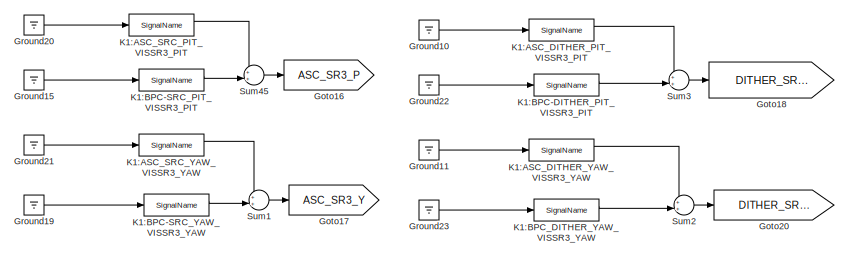
[diagram: root canvas - part 1/4, top right region]
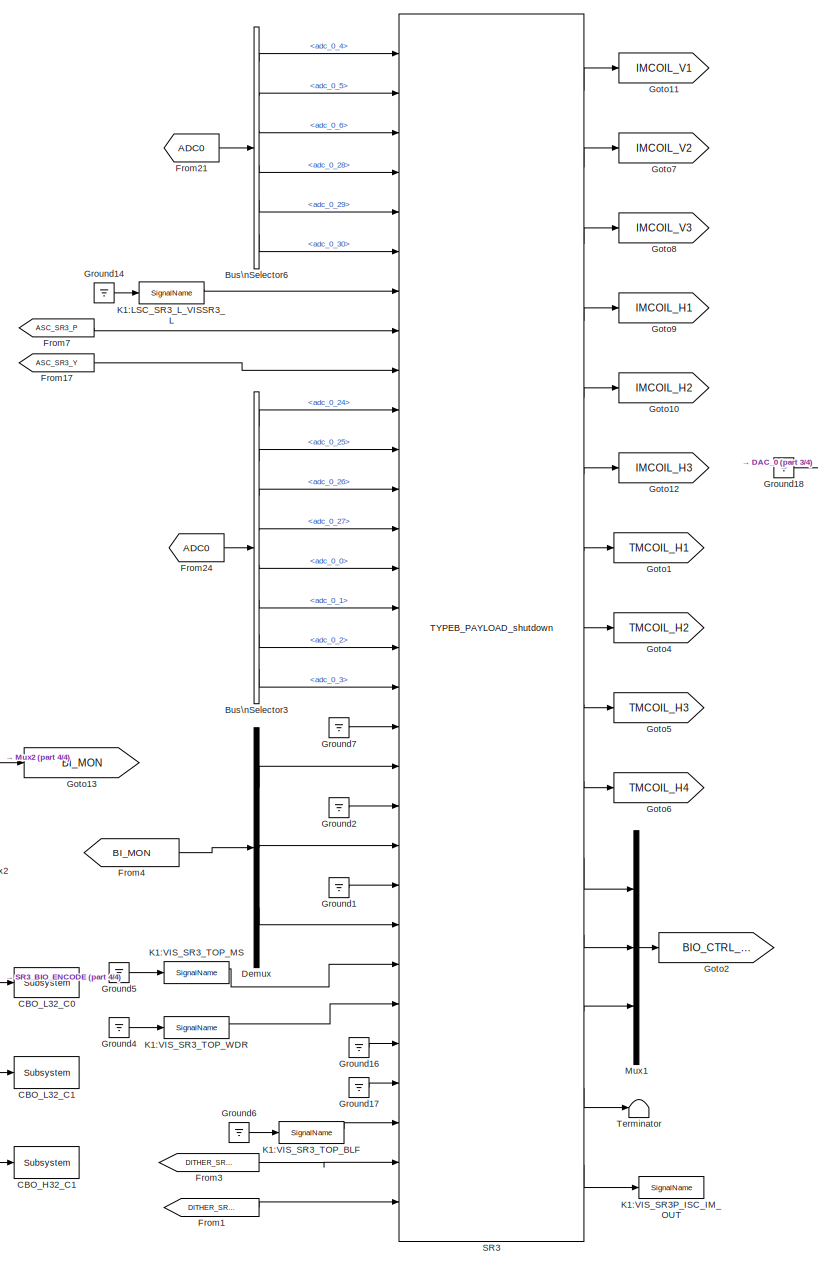
[diagram: root canvas - part 2/4, center side, full height]
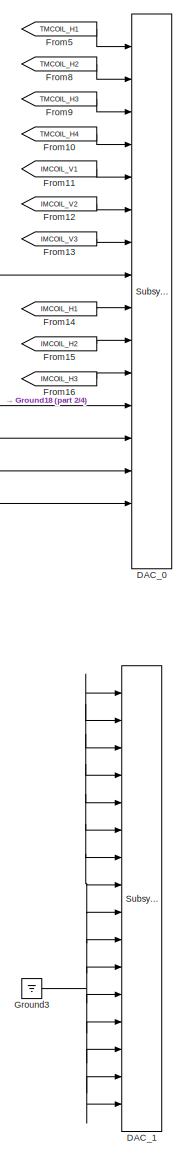
[diagram: root canvas - part 3/4, right side, full height]
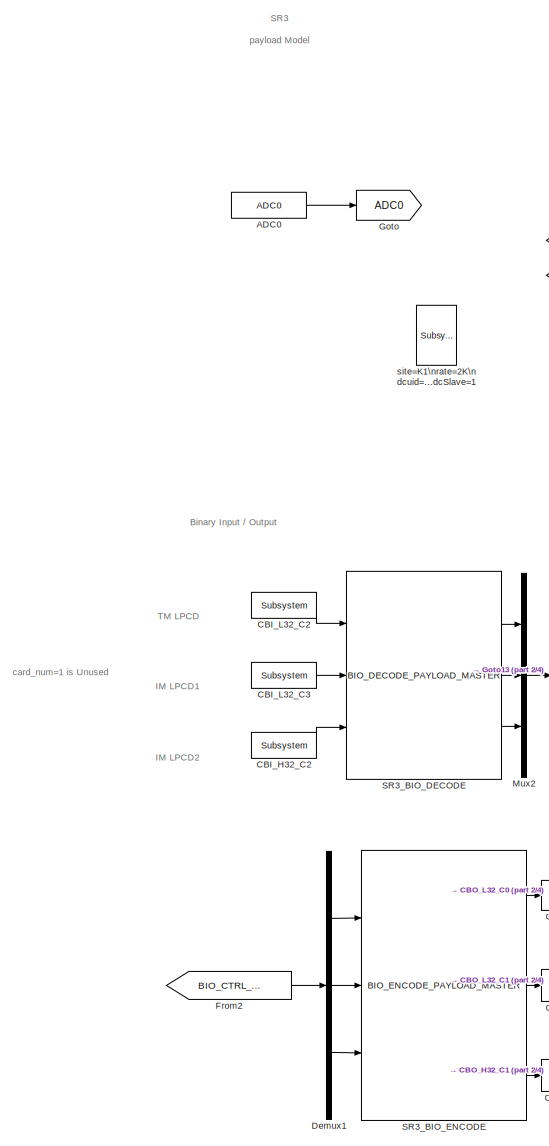
[diagram: root canvas - part 4/4, left side, full height]
MODEL k1vissr3p
KIND model
BLOCK [Reference] ADC0  REF=cdsAdcx0/ADC0
  AttributesFormatString = %<Description>\\n%<Tag>
  Description = type-GSC_16AI64SSA\ncard_num=0
  Ports = [0, 1]
  SID = 271
  SourceBlock = cdsAdcx0/ADC0
  SourceType = SubSystem
  Tag = cdsAdc
BLOCK [BusSelector] Bus\nSelector3
  AttributesFormatString = %<Description>
  Description = ADC Selector
  OutputSignals = adc_0_24,adc_0_25,adc_0_26,adc_0_27,adc_0_0,adc_0_1,adc_0_2,adc_0_3
  Ports = [1, 8]
  SID = 275
BLOCK [BusSelector] Bus\nSelector6
  AttributesFormatString = %<Description>
  Description = ADC Selector
  OutputSignals = adc_0_4,adc_0_5,adc_0_6,adc_0_28,adc_0_29,adc_0_30
  Ports = [1, 6]
  SID = 273
BLOCK [Reference] CBI_H32_C2  REF=cdsCDI64/Subsystem
  AttributesFormatString = %<Tag>\\n%<Description>
  Description = card_num=3
  Ports = [0, 1]
  SID = 2354
  SourceBlock = cdsCDI64/Subsystem
  SourceType = SubSystem
  Tag = cdsCDI64
BLOCK [Reference] CBI_L32_C2  REF=cdsCDI64/Subsystem
  AttributesFormatString = %<Tag>\\n%<Description>
  Description = card_num=0
  Ports = [0, 1]
  SID = 2355
  SourceBlock = cdsCDI64/Subsystem
  SourceType = SubSystem
  Tag = cdsCDI64
BLOCK [Reference] CBI_L32_C3  REF=cdsCDI64/Subsystem
  AttributesFormatString = %<Tag>\\n%<Description>
  Description = card_num=2
  Ports = [0, 1]
  SID = 2356
  SourceBlock = cdsCDI64/Subsystem
  SourceType = SubSystem
  Tag = cdsCDI64
BLOCK [Reference] CBO_H32_C1  REF=cdsCDO64/Subsystem
  AttributesFormatString = %<Tag>\\n%<Description>
  Description = card_num=3
  Ports = [1]
  SID = 2363
  SourceBlock = cdsCDO64/Subsystem
  SourceType = SubSystem
  Tag = cdsCDO64
BLOCK [Reference] CBO_L32_C0  REF=cdsCDO64/Subsystem
  AttributesFormatString = %<Tag>\\n%<Description>
  Description = card_num=0
  Ports = [1]
  SID = 2364
  SourceBlock = cdsCDO64/Subsystem
  SourceType = SubSystem
  Tag = cdsCDO64
BLOCK [Reference] CBO_L32_C1  REF=cdsCDO64/Subsystem
  AttributesFormatString = %<Tag>\\n%<Description>
  Description = card_num=2
  Ports = [1]
  SID = 2365
  SourceBlock = cdsCDO64/Subsystem
  SourceType = SubSystem
  Tag = cdsCDO64
BLOCK [Reference] DAC_0  REF=dac/Subsystem  (lib defined in slx_40ef132df75b, slx_b7657ccccc5b, +4 more)
  AttributesFormatString = %<Description>
  Description = type=GSC_16AO16,\ncard_num=0
  Ports = [16]
  SID = 350
  SourceBlock = dac/Subsystem
  SourceType = SubSystem
BLOCK [Reference] DAC_1  REF=dac/Subsystem  (lib defined in slx_40ef132df75b, slx_b7657ccccc5b, +4 more)
  AttributesFormatString = %<Description>
  Description = type=GSC_16AO16,\ncard_num=1
  Ports = [16]
  SID = 536
  SourceBlock = dac/Subsystem
  SourceType = SubSystem
BLOCK [Demux] Demux
  DisplayOption = bar
  Outputs = 3
  Ports = [1, 3]
  SID = 2148
BLOCK [Demux] Demux1
  DisplayOption = bar
  Outputs = 3
  Ports = [1, 3]
  SID = 2366
BLOCK [From] From1
  GotoTag = DITHER_SR3_Y
  SID = 2439
BLOCK [From] From10
  GotoTag = TMCOIL_H4
  SID = 351
BLOCK [From] From11
  GotoTag = IMCOIL_V1
  SID = 352
BLOCK [From] From12
  GotoTag = IMCOIL_V2
  SID = 353
BLOCK [From] From13
  GotoTag = IMCOIL_V3
  SID = 354
BLOCK [From] From14
  GotoTag = IMCOIL_H1
  SID = 355
BLOCK [From] From15
  GotoTag = IMCOIL_H2
  SID = 356
BLOCK [From] From16
  GotoTag = IMCOIL_H3
  SID = 357
BLOCK [From] From17
  GotoTag = ASC_SR3_Y
  SID = 2435
BLOCK [From] From2
  GotoTag = BIO_CTRL_OUT
  SID = 2367
BLOCK [From] From21
  GotoTag = ADC0
  SID = 1851
BLOCK [From] From24
  GotoTag = ADC0
  SID = 1853
BLOCK [From] From3
  GotoTag = DITHER_SR3_P
  SID = 2440
BLOCK [From] From4
  GotoTag = BI_MON
  SID = 2149
BLOCK [From] From5
  GotoTag = TMCOIL_H1
  SID = 359
BLOCK [From] From7
  GotoTag = ASC_SR3_P
  SID = 2436
BLOCK [From] From8
  GotoTag = TMCOIL_H2
  SID = 360
BLOCK [From] From9
  GotoTag = TMCOIL_H3
  SID = 361
BLOCK [Goto] Goto
  GotoTag = ADC0
  SID = 272
BLOCK [Goto] Goto1
  GotoTag = TMCOIL_H1
  SID = 364
BLOCK [Goto] Goto10
  GotoTag = IMCOIL_H2
  SID = 368
BLOCK [Goto] Goto11
  GotoTag = IMCOIL_V1
  SID = 369
BLOCK [Goto] Goto12
  GotoTag = IMCOIL_H3
  SID = 370
BLOCK [Goto] Goto13
  GotoTag = BI_MON
  SID = 2357
BLOCK [Goto] Goto16
  GotoTag = ASC_SR3_P
  SID = 2411
BLOCK [Goto] Goto17
  GotoTag = ASC_SR3_Y
  SID = 2412
BLOCK [Goto] Goto18
  GotoTag = DITHER_SR3_P
  SID = 2413
BLOCK [Goto] Goto2
  GotoTag = BIO_CTRL_OUT
  SID = 2146
BLOCK [Goto] Goto20
  GotoTag = DITHER_SR3_Y
  SID = 2414
BLOCK [Goto] Goto4
  GotoTag = TMCOIL_H2
  SID = 365
BLOCK [Goto] Goto5
  GotoTag = TMCOIL_H3
  SID = 366
BLOCK [Goto] Goto6
  GotoTag = TMCOIL_H4
  SID = 367
BLOCK [Goto] Goto7
  GotoTag = IMCOIL_V2
  SID = 371
BLOCK [Goto] Goto8
  GotoTag = IMCOIL_V3
  SID = 372
BLOCK [Goto] Goto9
  GotoTag = IMCOIL_H1
  SID = 373
BLOCK [Ground] Ground1
  SID = 2152
BLOCK [Ground] Ground10
  SID = 2415
BLOCK [Ground] Ground11
  SID = 2416
BLOCK [Ground] Ground14
  SID = 2202
BLOCK [Ground] Ground15
  SID = 2417
BLOCK [Ground] Ground16
  SID = 2351
BLOCK [Ground] Ground17
  SID = 2352
BLOCK [Ground] Ground18
  SID = 362
BLOCK [Ground] Ground19
  SID = 2418
BLOCK [Ground] Ground2
  SID = 2153
BLOCK [Ground] Ground20
  SID = 2421
BLOCK [Ground] Ground21
  SID = 2422
BLOCK [Ground] Ground22
  SID = 2419
BLOCK [Ground] Ground23
  SID = 2420
BLOCK [Ground] Ground3
  SID = 537
BLOCK [Ground] Ground4
  SID = 2160
BLOCK [Ground] Ground5
  SID = 2162
BLOCK [Ground] Ground6
  SID = 2370
BLOCK [Ground] Ground7
  SID = 2151
BLOCK [Reference] K1:ASC_DITHER_PIT_VISSR3_PIT  REF=cdsIPCx/SignalName
  AttributesFormatString = %<Tag>
  Description = Inter-Process Communication via PCI Express network.
  Ports = [1, 2]
  SID = 2376
  SourceBlock = cdsIPCx/SignalName
  SourceType = SubSystem
  Tag = cdsIPCx_PCIE
BLOCK [Reference] K1:ASC_DITHER_YAW_VISSR3_YAW  REF=cdsIPCx/SignalName
  AttributesFormatString = %<Tag>
  Description = Inter-Process Communication via PCI Express network.
  Ports = [1, 2]
  SID = 2377
  SourceBlock = cdsIPCx/SignalName
  SourceType = SubSystem
  Tag = cdsIPCx_PCIE
BLOCK [Reference] K1:ASC_SRC_PIT_VISSR3_PIT  REF=cdsIPCx/SignalName
  AttributesFormatString = %<Tag>
  Description = Inter-Process Communication via PCI Express network.
  Ports = [1, 2]
  SID = 2378
  SourceBlock = cdsIPCx/SignalName
  SourceType = SubSystem
  Tag = cdsIPCx_PCIE
BLOCK [Reference] K1:ASC_SRC_YAW_VISSR3_YAW  REF=cdsIPCx/SignalName
  AttributesFormatString = %<Tag>
  Description = Inter-Process Communication via PCI Express network.
  Ports = [1, 2]
  SID = 2379
  SourceBlock = cdsIPCx/SignalName
  SourceType = SubSystem
  Tag = cdsIPCx_PCIE
BLOCK [Reference] K1:BPC-DITHER_PIT_VISSR3_PIT  REF=cdsIPCx/SignalName
  AttributesFormatString = %<Tag>
  Description = Inter-Process Communication via PCI Express network.
  Ports = [1, 2]
  SID = 2427
  SourceBlock = cdsIPCx/SignalName
  SourceType = SubSystem
  Tag = cdsIPCx_PCIE
BLOCK [Reference] K1:BPC-SRC_PIT_VISSR3_PIT  REF=cdsIPCx/SignalName
  AttributesFormatString = %<Tag>
  Description = Inter-Process Communication via PCI Express network.
  Ports = [1, 2]
  SID = 2428
  SourceBlock = cdsIPCx/SignalName
  SourceType = SubSystem
  Tag = cdsIPCx_PCIE
BLOCK [Reference] K1:BPC-SRC_YAW_VISSR3_YAW  REF=cdsIPCx/SignalName
  AttributesFormatString = %<Tag>
  Description = Inter-Process Communication via PCI Express network.
  Ports = [1, 2]
  SID = 2429
  SourceBlock = cdsIPCx/SignalName
  SourceType = SubSystem
  Tag = cdsIPCx_PCIE
BLOCK [Reference] K1:BPC_DITHER_YAW_VISSR3_YAW  REF=cdsIPCx/SignalName
  AttributesFormatString = %<Tag>
  Description = Inter-Process Communication via PCI Express network.
  Ports = [1, 2]
  SID = 2430
  SourceBlock = cdsIPCx/SignalName
  SourceType = SubSystem
  Tag = cdsIPCx_PCIE
BLOCK [Reference] K1:LSC_SR3_L_VISSR3_L  REF=cdsIPCx/SignalName
  AttributesFormatString = %<Tag>
  Description = Inter-Process Communication via PCI Express network.
  Ports = [1, 2]
  SID = 2386
  SourceBlock = cdsIPCx/SignalName
  SourceType = SubSystem
  Tag = cdsIPCx_PCIE
BLOCK [Reference] K1:VIS_SR3P_ISC_IM_OUT  REF=cdsIPCx/SignalName
  AttributesFormatString = %<Tag>
  Description = Inter-Process Communication via Shared memory.
  Ports = [1, 2]
  SID = 2441
  SourceBlock = cdsIPCx/SignalName
  SourceType = SubSystem
  Tag = cdsIPCx_SHMEM
BLOCK [Reference] K1:VIS_SR3_TOP_BLF  REF=cdsIPCx/SignalName
  AttributesFormatString = %<Tag>
  Description = Inter-Process Communication via Shared memory.
  Ports = [1, 2]
  SID = 2371
  SourceBlock = cdsIPCx/SignalName
  SourceType = SubSystem
  Tag = cdsIPCx_SHMEM
BLOCK [Reference] K1:VIS_SR3_TOP_MS  REF=cdsIPCx/SignalName
  AttributesFormatString = %<Tag>
  Description = Inter-Process Communication via Shared memory.
  Ports = [1, 2]
  SID = 2163
  SourceBlock = cdsIPCx/SignalName
  SourceType = SubSystem
  Tag = cdsIPCx_SHMEM
BLOCK [Reference] K1:VIS_SR3_TOP_WDR  REF=cdsIPCx/SignalName
  AttributesFormatString = %<Tag>
  Description = Inter-Process Communication via Shared memory.
  Ports = [1, 2]
  SID = 2161
  SourceBlock = cdsIPCx/SignalName
  SourceType = SubSystem
  Tag = cdsIPCx_SHMEM
BLOCK [Mux] Mux1
  DisplayOption = bar
  Inputs = 3
  Ports = [3, 1]
  SID = 2147
BLOCK [Mux] Mux2
  DisplayOption = bar
  Inputs = 3
  Ports = [3, 1]
  SID = 2358
BLOCK [Reference] SR3  REF=TYPEB_MASTER/TYPEB_PAYLOAD_shutdown
  Ports = [30, 15]
  SID = 2369
  SourceBlock = TYPEB_MASTER/TYPEB_PAYLOAD_shutdown
  SourceType = SubSystem
BLOCK [Reference] SR3_BIO_DECODE  REF=TYPEB_MASTER/BIO_DECODE_PAYLOAD_MASTER
  Ports = [3, 3]
  SID = 2359
  SourceBlock = TYPEB_MASTER/BIO_DECODE_PAYLOAD_MASTER
  SourceType = SubSystem
BLOCK [Reference] SR3_BIO_ENCODE  REF=TYPEB_MASTER/BIO_ENCODE_PAYLOAD_MASTER
  Ports = [3, 3]
  SID = 2368
  SourceBlock = TYPEB_MASTER/BIO_ENCODE_PAYLOAD_MASTER
  SourceType = SubSystem
BLOCK [Sum] Sum1
  IconShape = round
  InputSameDT = off
  Inputs = ++|
  OutDataTypeStr = Inherit: Inherit via internal rule
  Ports = [2, 1]
  SID = 2431
  SaturateOnIntegerOverflow = off
BLOCK [Sum] Sum2
  IconShape = round
  InputSameDT = off
  Inputs = ++|
  OutDataTypeStr = Inherit: Inherit via internal rule
  Ports = [2, 1]
  SID = 2432
  SaturateOnIntegerOverflow = off
BLOCK [Sum] Sum3
  IconShape = round
  InputSameDT = off
  Inputs = ++|
  OutDataTypeStr = Inherit: Inherit via internal rule
  Ports = [2, 1]
  SID = 2433
  SaturateOnIntegerOverflow = off
BLOCK [Sum] Sum45
  IconShape = round
  InputSameDT = off
  Inputs = ++|
  OutDataTypeStr = Inherit: Inherit via internal rule
  Ports = [2, 1]
  SID = 2434
  SaturateOnIntegerOverflow = off
BLOCK [Terminator] Terminator
  SID = 2372
BLOCK [Reference] site=K1\nrate=2K\ndcuid=71\nhost=k1sr3\nspecific_cpu=3\nadcSlave=1  REF=cdsParameters/Subsystem
  AttributesFormatString = %<Tag>
  Description = Purpose:                                                                                                                                                                                                                                \nProvide system parameters to the FE code generator to properly configure the generated EPICS names, rep rate of the FE controller, and the Data Acquisition node ID fo...<+2934ch>
  Ports = []
  SID = 422
  SourceBlock = cdsParameters/Subsystem
  SourceType = SubSystem
  Tag = cdsParameters
ANNOTATION (root): \n \n SR3 \n payload Model
ANNOTATION (root): \n \n TM LPCD
ANNOTATION (root): \n \n card_num=1 is Unused
ANNOTATION (root): \n \n IM LPCD1
ANNOTATION (root): \n \n IM LPCD2
ANNOTATION (root): Binary Input / Output
LINE ADC0:1 -> Goto:1
LINE Bus\nSelector3:1 -> SR3:10
LINE Bus\nSelector3:2 -> SR3:11
LINE Bus\nSelector3:3 -> SR3:12
LINE Bus\nSelector3:4 -> SR3:13
LINE Bus\nSelector3:5 -> SR3:14
LINE Bus\nSelector3:6 -> SR3:15
LINE Bus\nSelector3:7 -> SR3:16
LINE Bus\nSelector3:8 -> SR3:17
LINE Bus\nSelector6:1 -> SR3:1
LINE Bus\nSelector6:2 -> SR3:2
LINE Bus\nSelector6:3 -> SR3:3
LINE Bus\nSelector6:4 -> SR3:4
LINE Bus\nSelector6:5 -> SR3:5
LINE Bus\nSelector6:6 -> SR3:6
LINE CBI_H32_C2:1 -> SR3_BIO_DECODE:3
LINE CBI_L32_C2:1 -> SR3_BIO_DECODE:1
LINE CBI_L32_C3:1 -> SR3_BIO_DECODE:2
LINE Demux1:1 -> SR3_BIO_ENCODE:1
LINE Demux1:2 -> SR3_BIO_ENCODE:2
LINE Demux1:3 -> SR3_BIO_ENCODE:3
LINE Demux:1 -> SR3:19
LINE Demux:2 -> SR3:21
LINE Demux:3 -> SR3:23
LINE From10:1 -> DAC_0:4
LINE From11:1 -> DAC_0:5
LINE From12:1 -> DAC_0:6
LINE From13:1 -> DAC_0:7
LINE From14:1 -> DAC_0:9
LINE From15:1 -> DAC_0:10
LINE From16:1 -> DAC_0:11
LINE From17:1 -> SR3:9
LINE From1:1 -> SR3:30
LINE From21:1 -> Bus\nSelector6:1
LINE From24:1 -> Bus\nSelector3:1
LINE From2:1 -> Demux1:1
LINE From3:1 -> SR3:29
LINE From4:1 -> Demux:1
LINE From5:1 -> DAC_0:1
LINE From7:1 -> SR3:8
LINE From8:1 -> DAC_0:2
LINE From9:1 -> DAC_0:3
LINE Ground10:1 -> K1:ASC_DITHER_PIT_VISSR3_PIT:1
LINE Ground11:1 -> K1:ASC_DITHER_YAW_VISSR3_YAW:1
LINE Ground14:1 -> K1:LSC_SR3_L_VISSR3_L:1
LINE Ground15:1 -> K1:BPC-SRC_PIT_VISSR3_PIT:1
LINE Ground16:1 -> SR3:26
LINE Ground17:1 -> SR3:27
NET Ground18:1 -> DAC_0:12, DAC_0:13, DAC_0:14, DAC_0:15, DAC_0:8
LINE Ground19:1 -> K1:BPC-SRC_YAW_VISSR3_YAW:1
LINE Ground1:1 -> SR3:22
LINE Ground20:1 -> K1:ASC_SRC_PIT_VISSR3_PIT:1
LINE Ground21:1 -> K1:ASC_SRC_YAW_VISSR3_YAW:1
LINE Ground22:1 -> K1:BPC-DITHER_PIT_VISSR3_PIT:1
LINE Ground23:1 -> K1:BPC_DITHER_YAW_VISSR3_YAW:1
LINE Ground2:1 -> SR3:20
NET Ground3:1 -> DAC_1:1, DAC_1:10, DAC_1:11, DAC_1:12, DAC_1:13, DAC_1:14, DAC_1:15, DAC_1:16, DAC_1:2, DAC_1:3, DAC_1:4, DAC_1:5, DAC_1:6, DAC_1:7, DAC_1:8, DAC_1:9
LINE Ground4:1 -> K1:VIS_SR3_TOP_WDR:1
LINE Ground5:1 -> K1:VIS_SR3_TOP_MS:1
LINE Ground6:1 -> K1:VIS_SR3_TOP_BLF:1
LINE Ground7:1 -> SR3:18
LINE K1:ASC_DITHER_PIT_VISSR3_PIT:1 -> Sum3:1
LINE K1:ASC_DITHER_YAW_VISSR3_YAW:1 -> Sum2:1
LINE K1:ASC_SRC_PIT_VISSR3_PIT:1 -> Sum45:1
LINE K1:ASC_SRC_YAW_VISSR3_YAW:1 -> Sum1:1
LINE K1:BPC-DITHER_PIT_VISSR3_PIT:1 -> Sum3:2
LINE K1:BPC-SRC_PIT_VISSR3_PIT:1 -> Sum45:2
LINE K1:BPC-SRC_YAW_VISSR3_YAW:1 -> Sum1:2
LINE K1:BPC_DITHER_YAW_VISSR3_YAW:1 -> Sum2:2
LINE K1:LSC_SR3_L_VISSR3_L:1 -> SR3:7
LINE K1:VIS_SR3_TOP_BLF:1 -> SR3:28
LINE K1:VIS_SR3_TOP_MS:1 -> SR3:24
LINE K1:VIS_SR3_TOP_WDR:1 -> SR3:25
LINE Mux1:1 -> Goto2:1
LINE Mux2:1 -> Goto13:1
LINE SR3:1 -> Goto11:1
LINE SR3:10 -> Goto6:1
LINE SR3:11 -> Mux1:1
LINE SR3:12 -> Mux1:2
LINE SR3:13 -> Mux1:3
LINE SR3:14 -> Terminator:1
LINE SR3:15 -> K1:VIS_SR3P_ISC_IM_OUT:1
LINE SR3:2 -> Goto7:1
LINE SR3:3 -> Goto8:1
LINE SR3:4 -> Goto9:1
LINE SR3:5 -> Goto10:1
LINE SR3:6 -> Goto12:1
LINE SR3:7 -> Goto1:1
LINE SR3:8 -> Goto4:1
LINE SR3:9 -> Goto5:1
LINE SR3_BIO_DECODE:1 -> Mux2:1
LINE SR3_BIO_DECODE:2 -> Mux2:2
LINE SR3_BIO_DECODE:3 -> Mux2:3
LINE SR3_BIO_ENCODE:1 -> CBO_L32_C0:1
LINE SR3_BIO_ENCODE:2 -> CBO_L32_C1:1
LINE SR3_BIO_ENCODE:3 -> CBO_H32_C1:1
LINE Sum1:1 -> Goto17:1
LINE Sum2:1 -> Goto20:1
LINE Sum3:1 -> Goto18:1
LINE Sum45:1 -> Goto16:1
note: NET lines group one-source signal fan-out (src -> all destinations, sorted); 1:1 wires keep LINE
